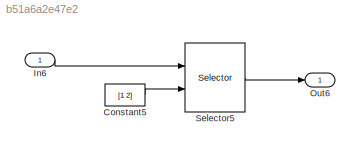
MODEL slx_b51a6a2e47e2
KIND model
CONFIG AbsTol = auto
CONFIG EnableMultiTasking = on
CONFIG FixedStep = 0.1
CONFIG MaxStep = 1
CONFIG MinStep = auto
CONFIG RelTol = 1e-3
CONFIG SampleTimeConstraint = Unconstrained
CONFIG Solver = FixedStepAuto
CONFIG SolverName = FixedStepAuto
CONFIG StartTime = 0.0
CONFIG StopTime = 0
BLOCK [Constant] Constant5
  Value = [1 2]
BLOCK [Inport] In6
  IconDisplay = Port number
  PortDimensions = 3
BLOCK [Outport] Out6
  IconDisplay = Port number
BLOCK [Selector] Selector5
  IndexOptions = Select all,Index vector (port)
  Indices = [2 1],1
  InputPortWidth = 3
  NumberOfDimensions = 2
  OutputSizes = 1,2
  Ports = [2, 1]
LINE Constant5:1 -> Selector5:2
LINE In6:1 -> Selector5:1
LINE Selector5:1 -> Out6:1
